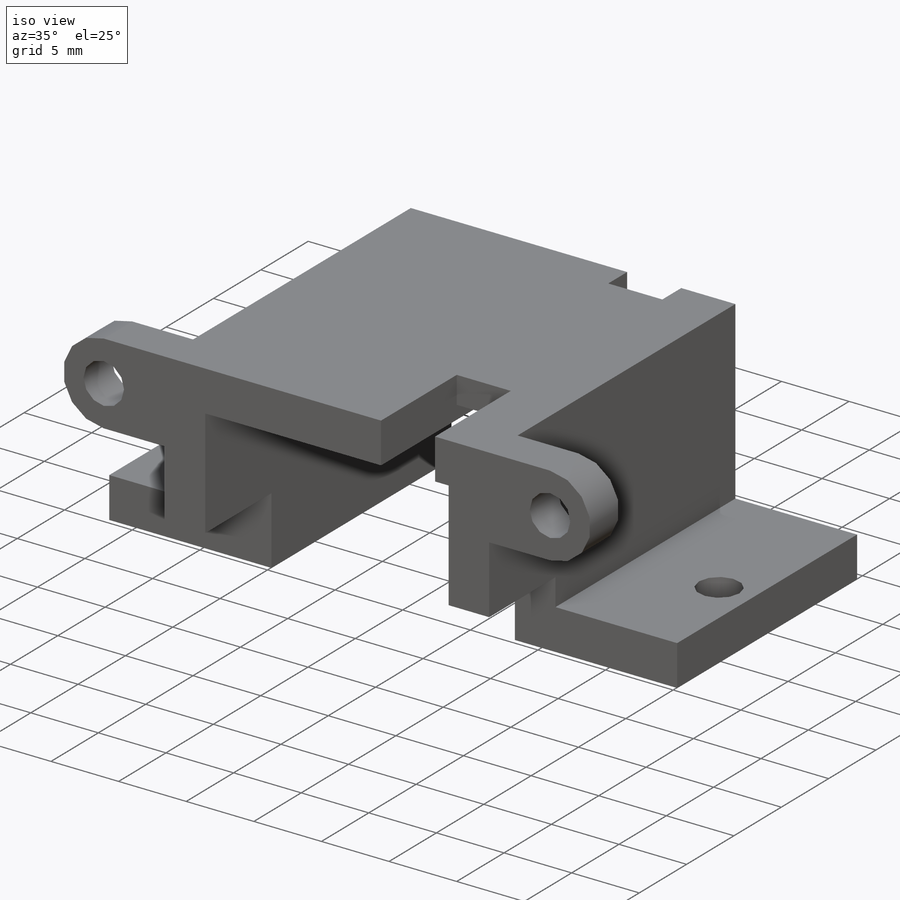
[diagram: iso view]
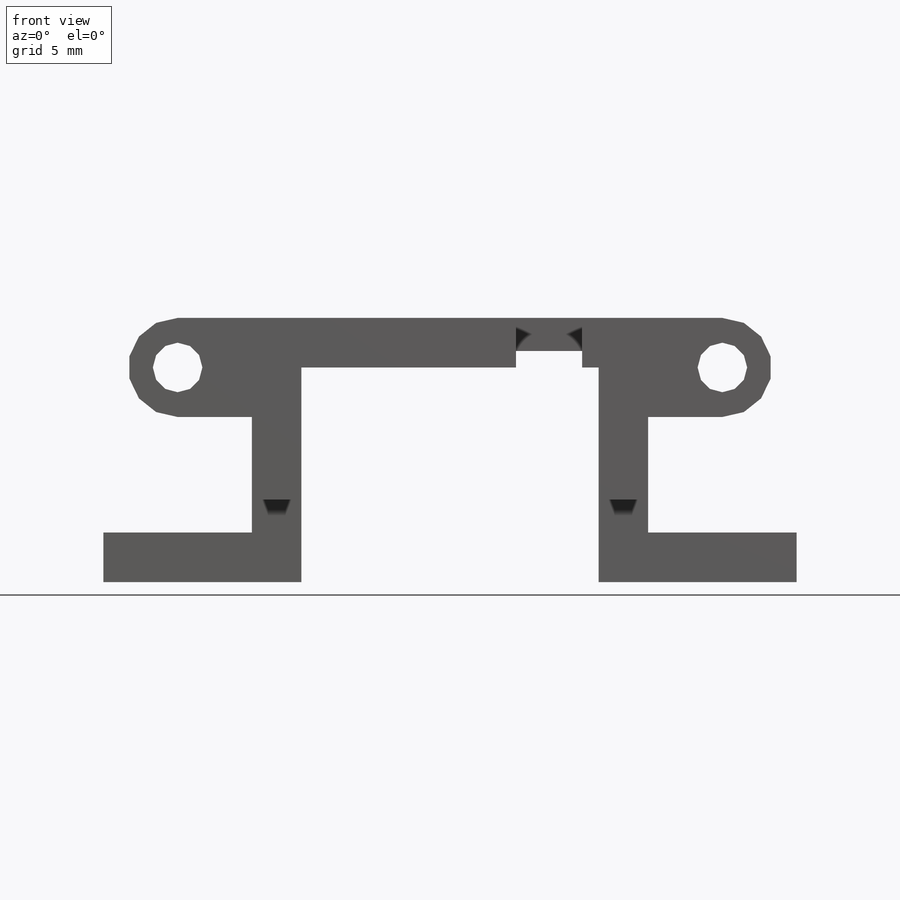
[diagram: front view]
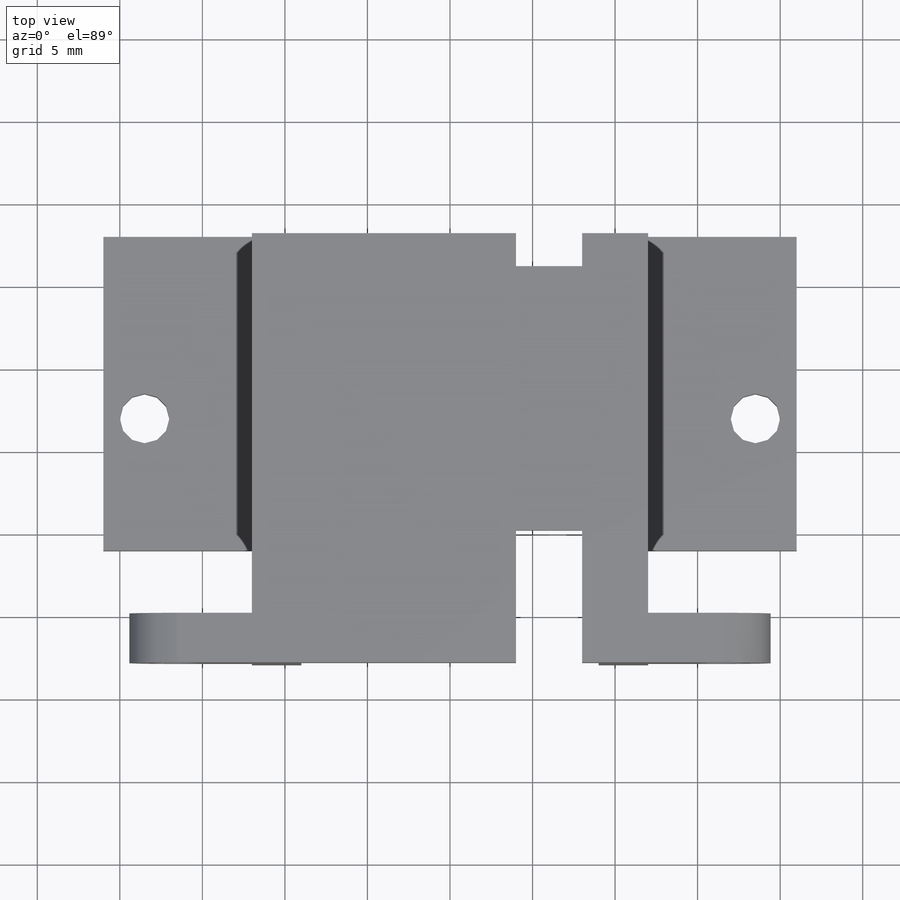
[diagram: top view]
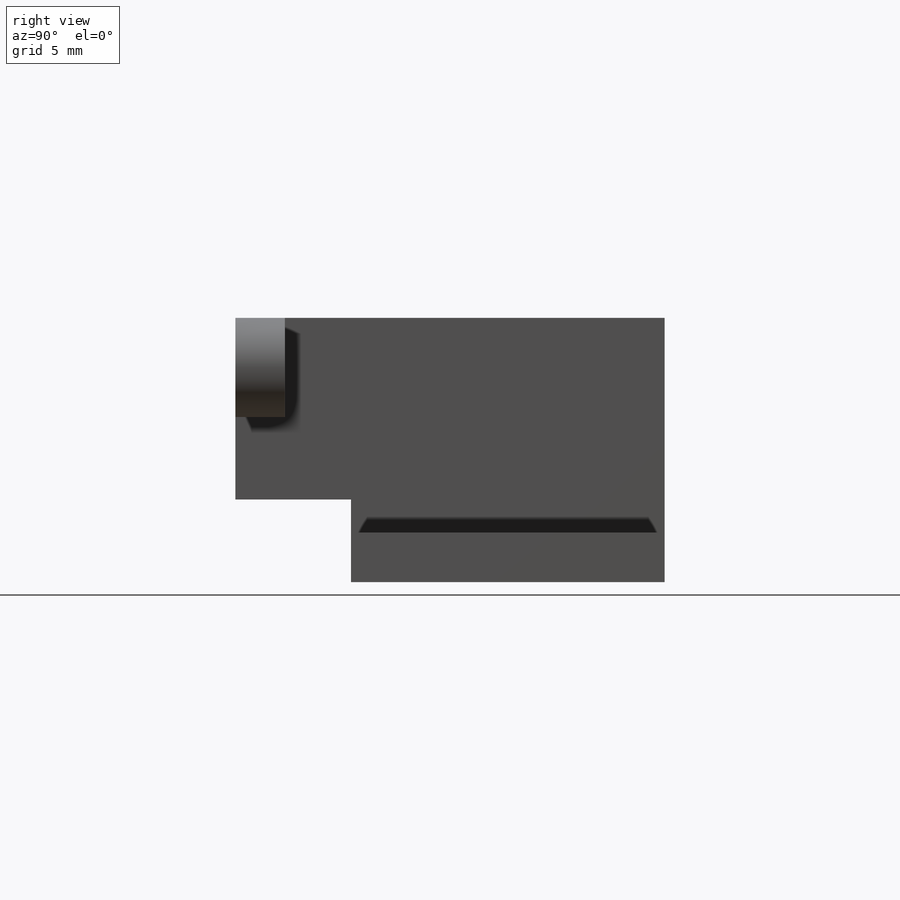
[diagram: right view]
SOLIDWORKS PART (.sldprt)
format: sldprt  version: not decoded by parser v0  size: 266,752 bytes
history: native  units: mm
features: sketch x7, cut_extrude x5, plane x3, mirror x2, material x1, extrude x1 (+12 scaffold rows collapsed)
feature tree (31):
  scaffold x12  (default folders/planes/origin — collapsed)
  material  "PVC 0.007 plastifié"
  plane  "Face"
  plane  "Dessus"
  plane  "Droite"
  sketch  "Esquisse1"  dims[c1.D1=16.0mm c1.D2=18.0mm c1.D3=13.0mm c2.D1=42.0mm c2.D4=21.0mm c3.D1=26.0mm c3.D5=3.0mm c3.D6=1.0mm c3.D7=5.0mm]
  sketch  "Esquisse2"  dims[D1=6.0mm D2=4.5mm]
  extrude  "Extrusion1"  Depth=3mm
  sketch  "Esquisse3"  dims[D1=3.0mm]
  cut_extrude  "Enlèv. mat.-Extru.1"  [1 undecoded]
  mirror  "Symétrie1"
  sketch  "Esquisse4"  dims[D1=8.0mm D2=4.0mm D3=2.0mm D4=4.0mm D5=4.0mm D6=4.0mm]
  cut_extrude  "Enlèv. mat.-Extru.2"  [1 undecoded]
  sketch  "Esquisse6"  dims[D1=7.0mm D2=5.0mm]
  cut_extrude  "Enlèv. mat.-Extru.4"  [1 undecoded]
  sketch  "Esquisse7"  dims[c1.D1=3.0mm c1.D2=3.0mm c1.D7=3.0mm c2.D1=3.0mm c2.D3=5.1mm c2.D4=10.0mm c2.D5=2.5mm c2.D6=5.0mm c3.D3=3.9mm c3.D1=8.0mm]
  cut_extrude  "Enlèv. mat.-Extru.5"  [1 undecoded]
  mirror  "Symétrie2"
  sketch  "Esquisse8"
  cut_extrude  "Enlèv. mat.-Extru.6"  Depth=1mm
decode coverage: 8 of 15 modeling features carry decoded parameters
note: 4 parameter values undecoded
summary: no parameter record found for 4 features
note: suppression state not decoded; provenance and decode notes live in map.json
